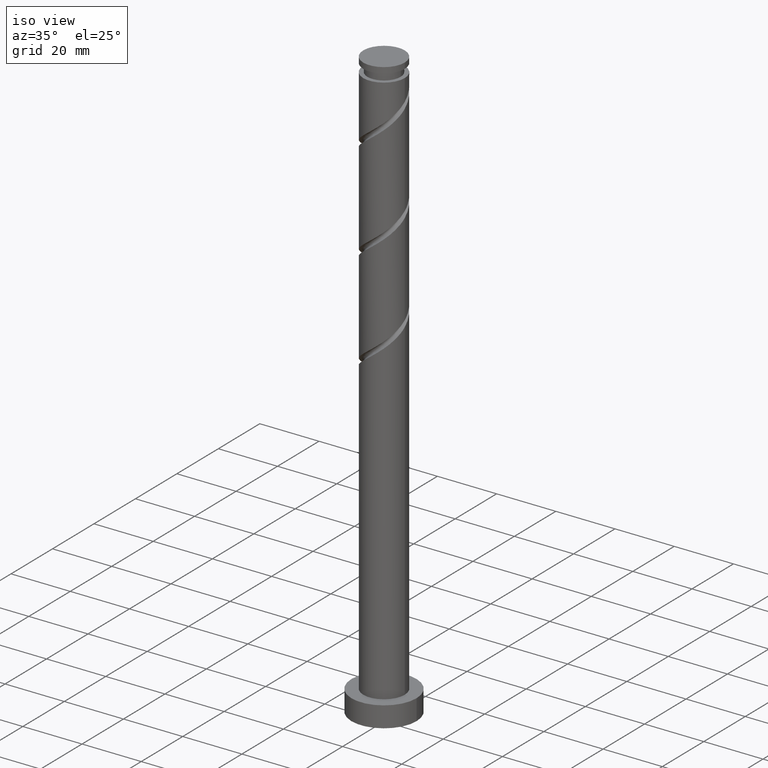
[diagram: clean part render]
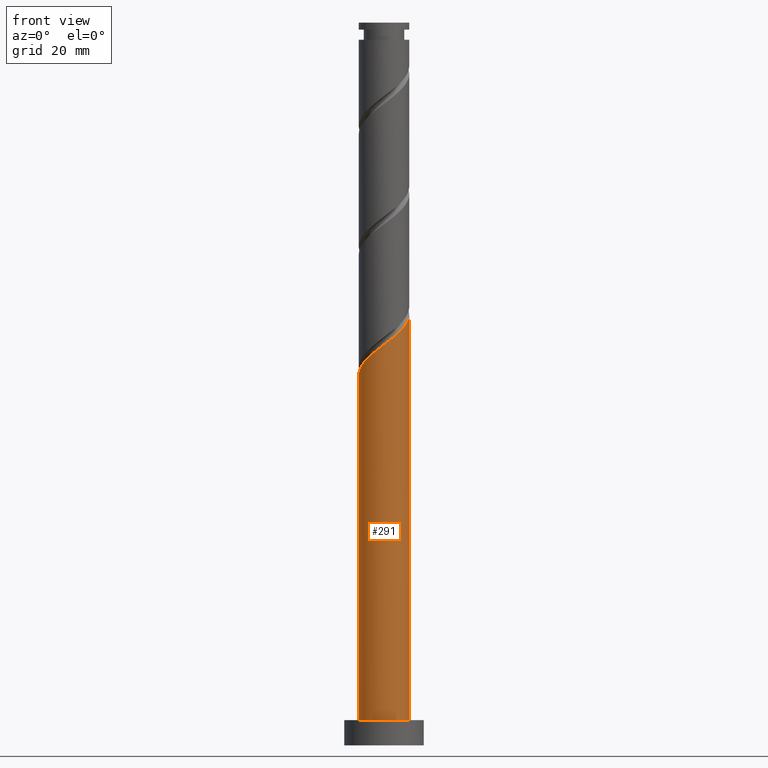
[diagram: tour spotlight — one face highlighted and labeled with its STEP entity id]
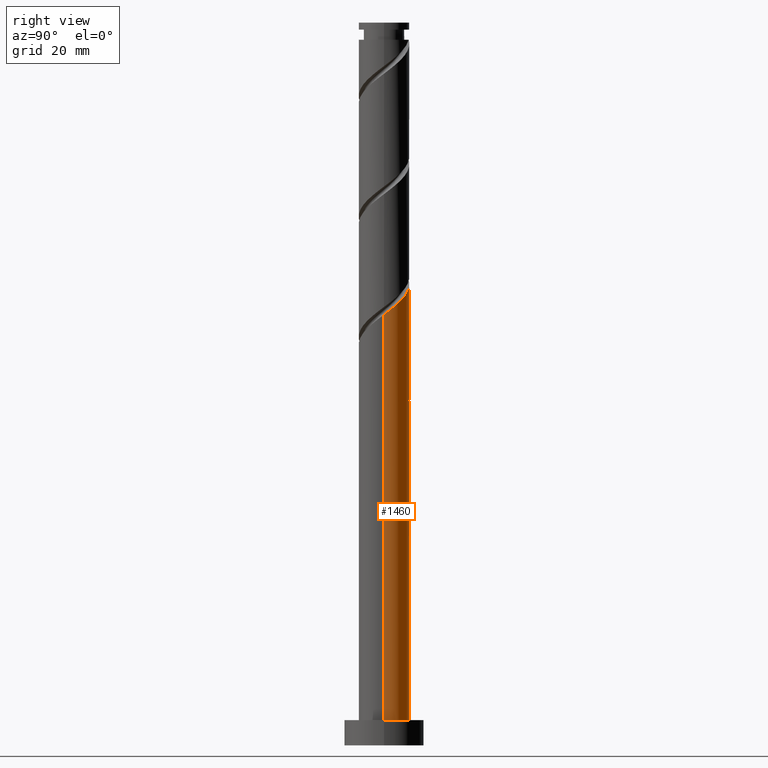
[diagram: tour spotlight — one face highlighted and labeled with its STEP entity id]
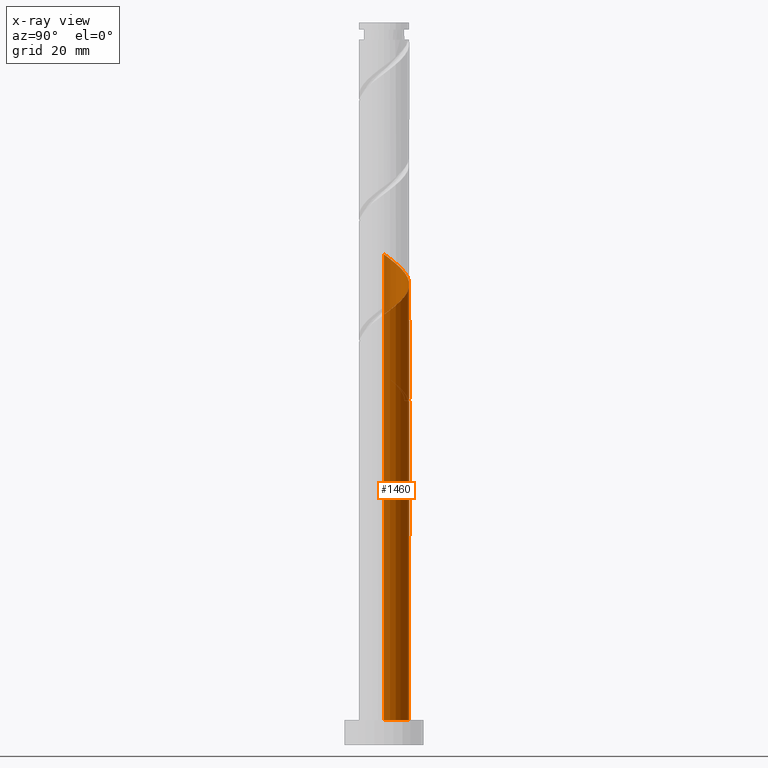
[diagram: x-ray of the same camera — body ghosted, this tour face saturated]
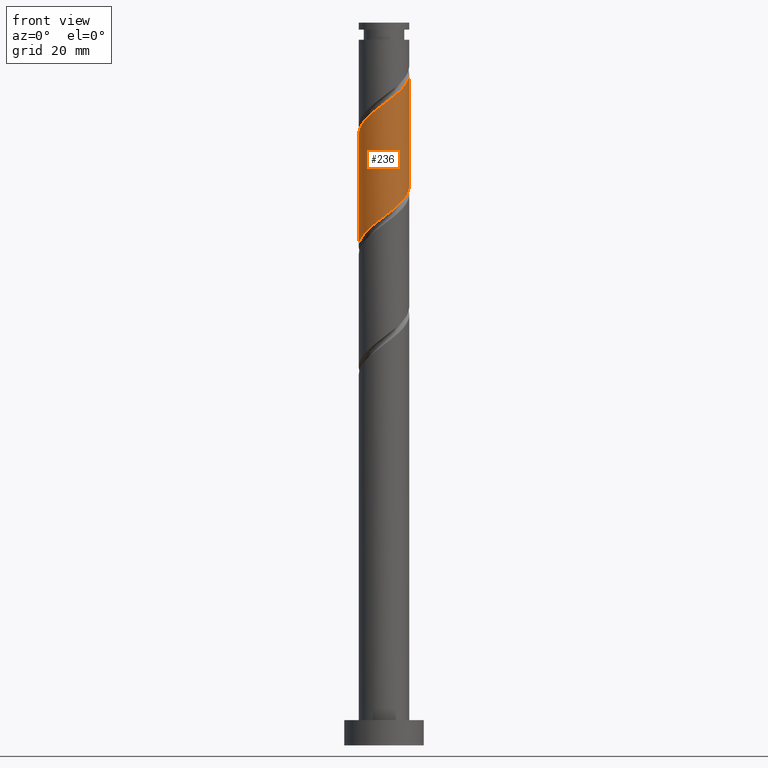
[diagram: tour spotlight — one face highlighted and labeled with its STEP entity id]
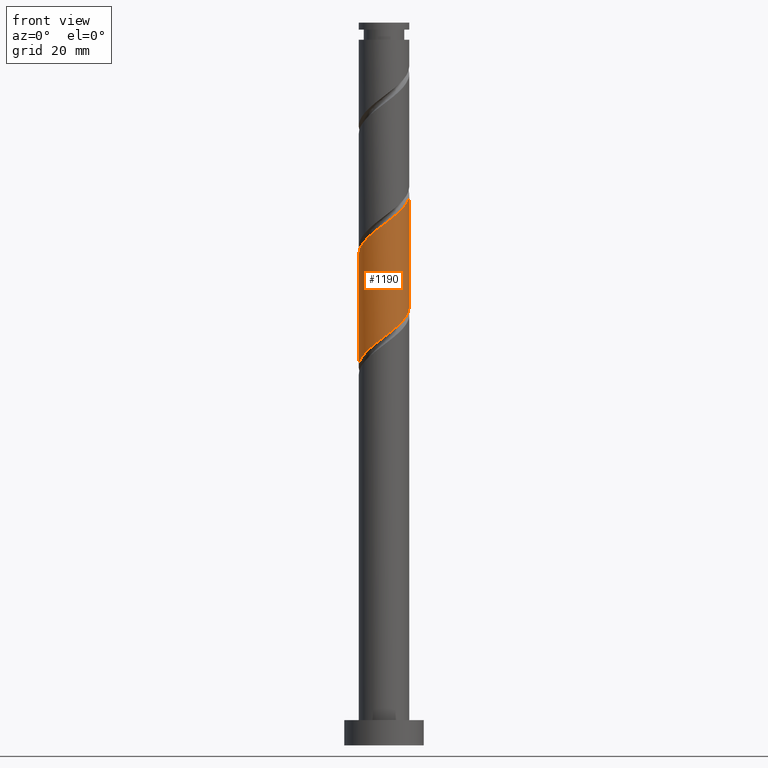
[diagram: tour spotlight — one face highlighted and labeled with its STEP entity id]
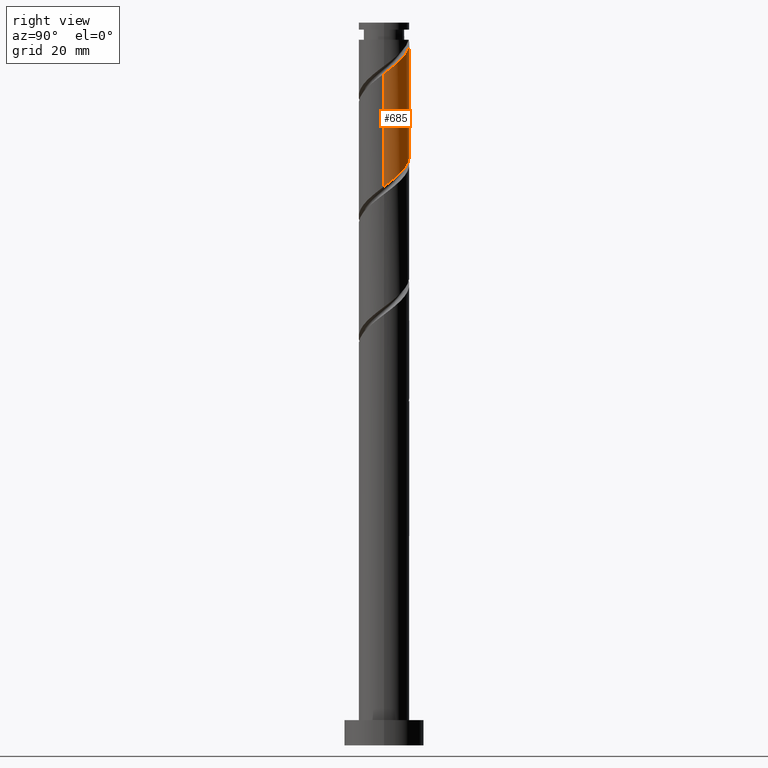
[diagram: tour spotlight — one face highlighted and labeled with its STEP entity id]
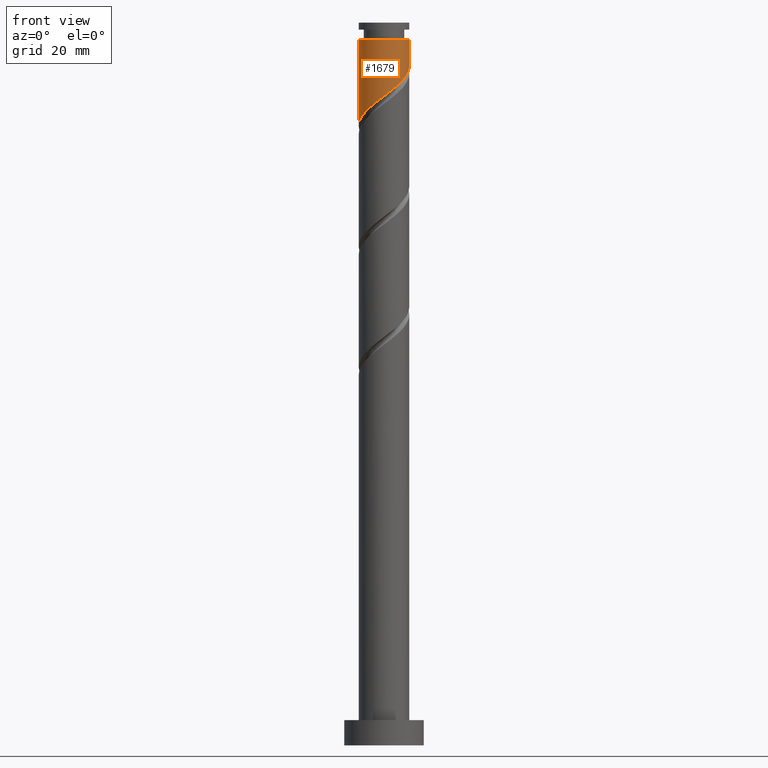
[diagram: tour spotlight — one face highlighted and labeled with its STEP entity id]
A machine part: a face-by-face anatomy tour. The part has 21 B-rep faces; the first image is the clean iso view, then the 6 largest visible faces are spotlighted one at a time (largest first), each with its STEP entity span.

Face 1 — front view, entity #291. In plain terms, the highlighted cylindrical surface (edge-blend (fillet) strip) has radius 7 mm, axis along (-0, -0, -1).
Definition (entity closure, byte-faithful):
#1 = CARTESIAN_POINT ( 'NONE',  ( 2.296118545398805111, -6.676610386371574890, 112.6299027166753177 ) ) ;
#21 = CARTESIAN_POINT ( 'NONE',  ( 6.930173478468219628, -1.349808202769851029, 118.1854582722308749 ) ) ;
#29 = CARTESIAN_POINT ( 'NONE',  ( 3.945914127944254890, -5.854831194903832525, 114.0187916055641750 ) ) ;
#72 = CARTESIAN_POINT ( 'NONE',  ( 7.000000000000000000, 8.572527594031473190E-16, 7.000000000000000000 ) ) ;
#94 = ORIENTED_EDGE ( 'NONE', *, *, #895, .T. ) ;
#130 = CARTESIAN_POINT ( 'NONE',  ( 1.392982411949269528, -6.860000000000009202, 111.9354582722308749 ) ) ;
#146 = CARTESIAN_POINT ( 'NONE',  ( -7.000000000000009770, -0.7035264706814507996, 103.0719846528767505 ) ) ;
#227 = VECTOR ( 'NONE', #273, 1000.000000000000000 ) ;
#273 = DIRECTION ( 'NONE',  ( -0.000000000000000000, -0.000000000000000000, -1.000000000000000000 ) ) ;
#291 = ADVANCED_FACE ( 'NONE', ( #1595 ), #1719, .T. ) ;
#315 = CARTESIAN_POINT ( 'NONE',  ( -7.000000000000008882, -4.216967213100880556E-15, 102.5385582836874931 ) ) ;
#388 = CARTESIAN_POINT ( 'NONE',  ( 7.000000000000008882, -1.196302755489611383E-16, 119.2052249503541361 ) ) ;
#414 = CARTESIAN_POINT ( 'NONE',  ( 7.000000000000008882, -1.196302755489611383E-16, 119.2052249503541361 ) ) ;
#423 = CARTESIAN_POINT ( 'NONE',  ( 5.326802183601723861, -4.634054933069415405, 115.4076804944530892 ) ) ;
#435 = CARTESIAN_POINT ( 'NONE',  ( 4.636358155772991374, -5.244443063986622633, 114.7132360500086605 ) ) ;
#477 = LINE ( 'NONE', #1292, #508 ) ;
#501 = CARTESIAN_POINT ( 'NONE',  ( -7.000000000000000000, 0.000000000000000000, 7.000000000000000000 ) ) ;
#508 = VECTOR ( 'NONE', #741, 1000.000000000000000 ) ;
#531 = CARTESIAN_POINT ( 'NONE',  ( 6.986781546048331570, -0.4299809621350620392, 118.8799027166753319 ) ) ;
#539 = CARTESIAN_POINT ( 'NONE',  ( -2.223641844227019160, -6.637425475935891939, 109.1576804944531034 ) ) ;
#547 = CARTESIAN_POINT ( 'NONE',  ( 3.121016336671529778, -6.265720790637702819, 113.3243471611197748 ) ) ;
#567 = CARTESIAN_POINT ( 'NONE',  ( -6.676610386371574890, -2.296118545398805111, 104.2965693833419607 ) ) ;
#568 = VERTEX_POINT ( 'NONE', #388 ) ;
#618 = DIRECTION ( 'NONE',  ( -0.000000000000000000, -0.000000000000000000, -1.000000000000000000 ) ) ;
#658 = EDGE_CURVE ( 'NONE', #1710, #568, #999, .T. ) ;
#663 = CARTESIAN_POINT ( 'NONE',  ( -5.854831194903829861, -3.945914127944256666, 105.6854582722308606 ) ) ;
#693 = CARTESIAN_POINT ( 'NONE',  ( -3.097475485684187291, -6.344677473403559809, 108.4632360500086321 ) ) ;
#741 = DIRECTION ( 'NONE',  ( -0.000000000000000000, -0.000000000000000000, -1.000000000000000000 ) ) ;
#761 = EDGE_LOOP ( 'NONE', ( #1196, #833, #94, #1029 ) ) ;
#763 = EDGE_CURVE ( 'NONE', #568, #944, #970, .T. ) ;
#813 = CARTESIAN_POINT ( 'NONE',  ( -0.4299809621350584310, -6.986781546048331570, 110.5465693833419891 ) ) ;
#818 = DIRECTION ( 'NONE',  ( 1.000000000000000000, 0.000000000000000000, 0.000000000000000000 ) ) ;
#833 = ORIENTED_EDGE ( 'NONE', *, *, #658, .F. ) ;
#839 = CARTESIAN_POINT ( 'NONE',  ( -4.634054933069415405, -5.326802183601723861, 107.0743471611197322 ) ) ;
#892 = CARTESIAN_POINT ( 'NONE',  ( 0.000000000000000000, 0.000000000000000000, 200.0000000000000000 ) ) ;
#895 = EDGE_CURVE ( 'NONE', #1710, #1152, #477, .T. ) ;
#907 = DIRECTION ( 'NONE',  ( -1.000000000000000000, 0.000000000000000000, 0.000000000000000000 ) ) ;
#942 = CARTESIAN_POINT ( 'NONE',  ( 7.000000000000000000, 8.572527594031473190E-16, 200.0000000000000000 ) ) ;
#944 = VERTEX_POINT ( 'NONE', #72 ) ;
#948 = CARTESIAN_POINT ( 'NONE',  ( 0.000000000000000000, 0.000000000000000000, 7.000000000000000000 ) ) ;
#970 = LINE ( 'NONE', #942, #227 ) ;
#980 = CARTESIAN_POINT ( 'NONE',  ( 6.637425475935891939, -2.223641844227019604, 117.4910138277864320 ) ) ;
#999 =( BOUNDED_CURVE ( )  B_SPLINE_CURVE ( 2, ( #1506, #146, #1496, #567, #1516, #663, #1743, #839, #1650, #693, #539, #1241, #813, #1613, #130, #1, #547, #29, #435, #423, #1622, #1084, #980, #21, #531, #1383, #414 ),
 .UNSPECIFIED., .F., .T. ) 
 B_SPLINE_CURVE_WITH_KNOTS ( ( 3, 2, 2, 2, 2, 2, 2, 2, 2, 2, 2, 2, 2, 3 ),
 ( 0.05453176698144634321, 0.06250000000000000000, 0.07291666666666662966, 0.08333333333333337034, 0.09375000000000000000, 0.1041666666666666297, 0.1145833333333333703, 0.1250000000000000000, 0.1354166666666666297, 0.1458333333333333703, 0.1562500000000000000, 0.1666666666666666297, 0.1770833333333333703, 0.1795317669814463502 ),
 .UNSPECIFIED. ) 
 CURVE ( )  GEOMETRIC_REPRESENTATION_ITEM ( )  RATIONAL_B_SPLINE_CURVE ( ( 0.9062941362546409474, 0.9031415850403454737, 0.9090909090909207180, 0.9013135103398393078, 0.9090909090909207180, 0.9013135103398393078, 0.9090909090909207180, 0.9013135103398393078, 0.9090909090909207180, 0.9013135103398393078, 0.9090909090909207180, 0.9013135103398393078, 0.9090909090909207180, 0.9013135103398393078, 0.9090909090909207180, 0.9013135103398393078, 0.9090909090909207180, 0.9013135103398393078, 0.9090909090909207180, 0.9013135103398393078, 0.9090909090909207180, 0.9013135103398393078, 0.9090909090909207180, 0.9013135103398393078, 0.9090909090909207180, 0.9072628343904144410, 0.9062941362546410584 ) ) 
 REPRESENTATION_ITEM ( '' )  );
#1029 = ORIENTED_EDGE ( 'NONE', *, *, #1375, .T. ) ;
#1084 = CARTESIAN_POINT ( 'NONE',  ( 6.344677473403559809, -3.097475485684187735, 116.7965693833419891 ) ) ;
#1110 = CIRCLE ( 'NONE', #1592, 7.000000000000000000 ) ;
#1152 = VERTEX_POINT ( 'NONE', #501 ) ;
#1196 = ORIENTED_EDGE ( 'NONE', *, *, #763, .F. ) ;
#1241 = CARTESIAN_POINT ( 'NONE',  ( -1.349808202769847476, -6.930173478468222292, 109.8521249388975036 ) ) ;
#1292 = CARTESIAN_POINT ( 'NONE',  ( -7.000000000000000000, 0.000000000000000000, 200.0000000000000000 ) ) ;
#1339 = DIRECTION ( 'NONE',  ( 0.000000000000000000, 0.000000000000000000, 1.000000000000000000 ) ) ;
#1353 = AXIS2_PLACEMENT_3D ( 'NONE', #892, #618, #907 ) ;
#1375 = EDGE_CURVE ( 'NONE', #1152, #944, #1110, .T. ) ;
#1383 = CARTESIAN_POINT ( 'NONE',  ( 7.000000000000010658, -0.2151936616037170846, 119.0420612623260297 ) ) ;
#1496 = CARTESIAN_POINT ( 'NONE',  ( -6.860000000000009202, -1.392982411949269750, 103.6021249388975605 ) ) ;
#1506 = CARTESIAN_POINT ( 'NONE',  ( -7.000000000000008882, -4.216967213100881344E-15, 102.5385582836874931 ) ) ;
#1516 = CARTESIAN_POINT ( 'NONE',  ( -6.265720790637701931, -3.121016336671532443, 104.9910138277864320 ) ) ;
#1592 = AXIS2_PLACEMENT_3D ( 'NONE', #948, #1339, #818 ) ;
#1595 = FACE_OUTER_BOUND ( 'NONE', #761, .T. ) ;
#1613 = CARTESIAN_POINT ( 'NONE',  ( 0.4898462784997307251, -7.043389613628444401, 111.2410138277864036 ) ) ;
#1622 = CARTESIAN_POINT ( 'NONE',  ( 5.835739828502642723, -3.865765209376803568, 116.1021249388975605 ) ) ;
#1650 = CARTESIAN_POINT ( 'NONE',  ( -3.865765209376802680, -5.835739828502645388, 107.7687916055642035 ) ) ;
#1710 = VERTEX_POINT ( 'NONE', #315 ) ;
#1719 = CYLINDRICAL_SURFACE ( 'NONE', #1353, 7.000000000000000000 ) ;
#1743 = CARTESIAN_POINT ( 'NONE',  ( -5.244443063986621745, -4.636358155772991374, 106.3799027166753461 ) ) ;

Face 2 — right view, entity #1460. An x-ray twin of the same camera follows (body ghosted, this face saturated) — the face is partly hidden behind the body. In plain terms, the highlighted cylindrical surface (edge-blend (fillet) strip) has radius 7 mm, axis along (-0, -0, -1).
Definition (entity closure, byte-faithful):
#14 = EDGE_CURVE ( 'NONE', #1640, #921, #1384, .T. ) ;
#18 = CARTESIAN_POINT ( 'NONE',  ( 1.392982411949271082, 6.860000000000000320, 95.26879160556420345 ) ) ;
#26 = CARTESIAN_POINT ( 'NONE',  ( -6.265720790637692161, 3.121016336671530667, 102.2132360500086605 ) ) ;
#47 = CARTESIAN_POINT ( 'NONE',  ( -7.000000000000010658, 0.2151936616037134486, 102.3753945956593441 ) ) ;
#72 = CARTESIAN_POINT ( 'NONE',  ( 7.000000000000000000, 8.572527594031473190E-16, 7.000000000000000000 ) ) ;
#89 = AXIS2_PLACEMENT_3D ( 'NONE', #893, #352, #1046 ) ;
#93 = CARTESIAN_POINT ( 'NONE',  ( -5.326802183601726526, 4.634054933069415405, 132.0743471611197322 ) ) ;
#101 = VECTOR ( 'NONE', #1410, 1000.000000000000000 ) ;
#114 = CARTESIAN_POINT ( 'NONE',  ( 5.854831194903832525, 3.945914127944254002, 122.3521249388975178 ) ) ;
#138 = CARTESIAN_POINT ( 'NONE',  ( -5.835739828502646276, 3.865765209376801792, 99.43545827223088907 ) ) ;
#140 = CIRCLE ( 'NONE', #89, 7.000000000000000000 ) ;
#143 = CARTESIAN_POINT ( 'NONE',  ( -5.854831194903820979, 3.945914127944254890, 101.5187916055642177 ) ) ;
#156 = CARTESIAN_POINT ( 'NONE',  ( -7.000000000000000000, 0.000000000000000000, 200.0000000000000000 ) ) ;
#196 =( BOUNDED_CURVE ( )  B_SPLINE_CURVE ( 2, ( #1526, #397, #1350, #823, #673, #1362, #138, #1392, #1019, #1159, #874, #47, #1011 ),
 .UNSPECIFIED., .F., .T. ) 
 B_SPLINE_CURVE_WITH_KNOTS ( ( 3, 2, 2, 2, 2, 2, 3 ),
 ( 0.000000000000000000, 0.01041666666666662966, 0.02083333333333337034, 0.03125000000000000000, 0.04166666666666662966, 0.05208333333333337034, 0.05453176698144634321 ),
 .UNSPECIFIED. ) 
 CURVE ( )  GEOMETRIC_REPRESENTATION_ITEM ( )  RATIONAL_B_SPLINE_CURVE ( ( 0.9090909090909207180, 0.9013135103398393078, 0.9090909090909207180, 0.9013135103398393078, 0.9090909090909207180, 0.9013135103398393078, 0.9090909090909207180, 0.9013135103398393078, 0.9090909090909207180, 0.9013135103398393078, 0.9090909090909207180, 0.9072628343904144410, 0.9062941362546409474 ) ) 
 REPRESENTATION_ITEM ( '' )  );
#218 = ORIENTED_EDGE ( 'NONE', *, *, #1243, .F. ) ;
#227 = VECTOR ( 'NONE', #273, 1000.000000000000000 ) ;
#231 = CARTESIAN_POINT ( 'NONE',  ( -6.344677473403561585, 3.097475485684185514, 133.4632360500086179 ) ) ;
#237 = CARTESIAN_POINT ( 'NONE',  ( -0.4898462784997261732, 7.043389613628444401, 127.9076804944530608 ) ) ;
#246 = CARTESIAN_POINT ( 'NONE',  ( 0.4299809621350623723, 6.986781546048331570, 127.2132360500086463 ) ) ;
#255 = CARTESIAN_POINT ( 'NONE',  ( 6.676610386371574890, 2.296118545398805111, 120.9632360500086321 ) ) ;
#270 = DIRECTION ( 'NONE',  ( -1.000000000000000000, 0.000000000000000000, 0.000000000000000000 ) ) ;
#273 = DIRECTION ( 'NONE',  ( -0.000000000000000000, -0.000000000000000000, -1.000000000000000000 ) ) ;
#299 = CARTESIAN_POINT ( 'NONE',  ( -7.000000000000001776, 7.476892221810113420E-15, 104.6656915941076278 ) ) ;
#315 = CARTESIAN_POINT ( 'NONE',  ( -7.000000000000008882, -4.216967213100880556E-15, 102.5385582836874931 ) ) ;
#346 = EDGE_CURVE ( 'NONE', #944, #1152, #366, .T. ) ;
#352 = DIRECTION ( 'NONE',  ( 0.000000000000000000, -4.956352788505163465E-15, -1.000000000000000000 ) ) ;
#365 = VERTEX_POINT ( 'NONE', #476 ) ;
#366 = CIRCLE ( 'NONE', #1365, 7.000000000000000000 ) ;
#381 = CARTESIAN_POINT ( 'NONE',  ( -1.392982411949268640, 6.860000000000009202, 128.6021249388975605 ) ) ;
#388 = CARTESIAN_POINT ( 'NONE',  ( 7.000000000000008882, -1.196302755489611383E-16, 119.2052249503541361 ) ) ;
#397 = CARTESIAN_POINT ( 'NONE',  ( -2.296118545398805999, 6.676610386371573114, 95.96323605000864632 ) ) ;
#476 = CARTESIAN_POINT ( 'NONE',  ( -1.392982411949268418, 6.860000000000009202, 95.26879160556420345 ) ) ;
#477 = LINE ( 'NONE', #1292, #508 ) ;
#483 = ORIENTED_EDGE ( 'NONE', *, *, #530, .F. ) ;
#488 = CARTESIAN_POINT ( 'NONE',  ( -3.945914127944259331, 5.854831194903828973, 130.6854582722308464 ) ) ;
#501 = CARTESIAN_POINT ( 'NONE',  ( -7.000000000000000000, 0.000000000000000000, 7.000000000000000000 ) ) ;
#503 = CARTESIAN_POINT ( 'NONE',  ( 6.265720790637702819, 3.121016336671528890, 121.6576804944531034 ) ) ;
#508 = VECTOR ( 'NONE', #741, 1000.000000000000000 ) ;
#526 = CARTESIAN_POINT ( 'NONE',  ( -6.860000000000000320, 1.392982411949269972, 103.6021249388975463 ) ) ;
#530 = EDGE_CURVE ( 'NONE', #568, #1640, #1111, .T. ) ;
#537 = AXIS2_PLACEMENT_3D ( 'NONE', #690, #700, #270 ) ;
#553 = CARTESIAN_POINT ( 'NONE',  ( -3.865765209376795575, 5.835739828502638282, 99.43545827223086064 ) ) ;
#568 = VERTEX_POINT ( 'NONE', #388 ) ;
#622 = CARTESIAN_POINT ( 'NONE',  ( -7.000000000000010658, 0.2151936616037128658, 135.7087279289926869 ) ) ;
#639 = CARTESIAN_POINT ( 'NONE',  ( 7.000000000000008882, -1.196302755489611383E-16, 119.2052249503541361 ) ) ;
#655 = CARTESIAN_POINT ( 'NONE',  ( -3.121016336671532443, 6.265720790637701931, 129.9910138277864462 ) ) ;
#660 = CARTESIAN_POINT ( 'NONE',  ( 0.4898462784997338337, 7.043389613628436408, 95.96323605000863211 ) ) ;
#669 = FACE_OUTER_BOUND ( 'NONE', #831, .T. ) ;
#673 = CARTESIAN_POINT ( 'NONE',  ( -4.636358155772993150, 5.244443063986621745, 98.04656938334200333 ) ) ;
#690 = CARTESIAN_POINT ( 'NONE',  ( 0.000000000000000000, 0.000000000000000000, 200.0000000000000000 ) ) ;
#700 = DIRECTION ( 'NONE',  ( -0.000000000000000000, -0.000000000000000000, -1.000000000000000000 ) ) ;
#713 = ORIENTED_EDGE ( 'NONE', *, *, #1168, .T. ) ;
#741 = DIRECTION ( 'NONE',  ( -0.000000000000000000, -0.000000000000000000, -1.000000000000000000 ) ) ;
#763 = EDGE_CURVE ( 'NONE', #568, #944, #970, .T. ) ;
#784 = CARTESIAN_POINT ( 'NONE',  ( 5.244443063986624409, 4.636358155772989598, 123.0465693833419891 ) ) ;
#794 = CARTESIAN_POINT ( 'NONE',  ( -5.835739828502646276, 3.865765209376801792, 132.7687916055642461 ) ) ;
#796 = EDGE_CURVE ( 'NONE', #365, #1710, #196, .T. ) ;
#806 =( BOUNDED_CURVE ( )  B_SPLINE_CURVE ( 2, ( #1090, #1740, #526, #1484, #26, #143, #1100, #1238, #553, #1748, #1627, #1230, #1636, #660, #18 ),
 .UNSPECIFIED., .F., .T. ) 
 B_SPLINE_CURVE_WITH_KNOTS ( ( 3, 2, 2, 2, 2, 2, 2, 3 ),
 ( 0.9295317669814463502, 0.9375000000000000000, 0.9479166666666666297, 0.9583333333333333703, 0.9687500000000000000, 0.9791666666666666297, 0.9895833333333333703, 1.000000000000000000 ),
 .UNSPECIFIED. ) 
 CURVE ( )  GEOMETRIC_REPRESENTATION_ITEM ( )  RATIONAL_B_SPLINE_CURVE ( ( 0.9062941362546359514, 0.9031415850403404777, 0.9090909090909158330, 0.9013135103398343118, 0.9090909090909158330, 0.9013135103398343118, 0.9090909090909158330, 0.9013135103398343118, 0.9090909090909158330, 0.9013135103398343118, 0.9090909090909158330, 0.9013135103398343118, 0.9090909090909158330, 0.9013135103398343118, 0.9090909090909158330 ) ) 
 REPRESENTATION_ITEM ( '' )  );
#823 = CARTESIAN_POINT ( 'NONE',  ( -3.945914127944259331, 5.854831194903828973, 97.35212493889754626 ) ) ;
#831 = EDGE_LOOP ( 'NONE', ( #483, #905, #1043, #1012, #1520, #713, #218, #1616 ) ) ;
#874 = CARTESIAN_POINT ( 'NONE',  ( -6.986781546048331570, 0.4299809621350583200, 102.2132360500086605 ) ) ;
#893 = CARTESIAN_POINT ( 'NONE',  ( 0.000000000000000000, 0.000000000000000000, 95.26879160556423187 ) ) ;
#895 = EDGE_CURVE ( 'NONE', #1710, #1152, #477, .T. ) ;
#905 = ORIENTED_EDGE ( 'NONE', *, *, #763, .T. ) ;
#921 = VERTEX_POINT ( 'NONE', #299 ) ;
#942 = CARTESIAN_POINT ( 'NONE',  ( 7.000000000000000000, 8.572527594031473190E-16, 200.0000000000000000 ) ) ;
#944 = VERTEX_POINT ( 'NONE', #72 ) ;
#970 = LINE ( 'NONE', #942, #227 ) ;
#1011 = CARTESIAN_POINT ( 'NONE',  ( -7.000000000000008882, -4.216967213100881344E-15, 102.5385582836874931 ) ) ;
#1012 = ORIENTED_EDGE ( 'NONE', *, *, #895, .F. ) ;
#1019 = CARTESIAN_POINT ( 'NONE',  ( -6.637425475935891939, 2.223641844227017828, 100.8243471611197748 ) ) ;
#1024 = CARTESIAN_POINT ( 'NONE',  ( 0.000000000000000000, 0.000000000000000000, 7.000000000000000000 ) ) ;
#1034 = CARTESIAN_POINT ( 'NONE',  ( 7.000000000000009770, 0.7035264706814470248, 119.7386513195434503 ) ) ;
#1043 = ORIENTED_EDGE ( 'NONE', *, *, #346, .T. ) ;
#1046 = DIRECTION ( 'NONE',  ( 0.000000000000000000, 1.000000000000000000, -5.947623346206195527E-15 ) ) ;
#1048 = CARTESIAN_POINT ( 'NONE',  ( 1.349808202769851251, 6.930173478468219628, 126.5187916055641750 ) ) ;
#1065 = CARTESIAN_POINT ( 'NONE',  ( -6.637425475935891939, 2.223641844227017828, 134.1576804944531034 ) ) ;
#1090 = CARTESIAN_POINT ( 'NONE',  ( -7.000000000000001776, 7.476892221810113420E-15, 104.6656915941076136 ) ) ;
#1100 = CARTESIAN_POINT ( 'NONE',  ( -5.244443063986615527, 4.636358155772987821, 100.8243471611197606 ) ) ;
#1111 =( BOUNDED_CURVE ( )  B_SPLINE_CURVE ( 2, ( #639, #1034, #1715, #255, #503, #114, #784, #1462, #1578, #1188, #1198, #1048, #246, #237, #381, #1209, #655, #488, #1448, #93, #794, #231, #1065, #1334, #1302, #622, #1736 ),
 .UNSPECIFIED., .F., .T. ) 
 B_SPLINE_CURVE_WITH_KNOTS ( ( 3, 2, 2, 2, 2, 2, 2, 2, 2, 2, 2, 2, 2, 3 ),
 ( 0.1795317669814463502, 0.1875000000000000000, 0.1979166666666666297, 0.2083333333333333703, 0.2187500000000000000, 0.2291666666666666297, 0.2395833333333333703, 0.2500000000000000000, 0.2604166666666666297, 0.2708333333333333703, 0.2812500000000000000, 0.2916666666666666297, 0.3020833333333333703, 0.3045317669814463502 ),
 .UNSPECIFIED. ) 
 CURVE ( )  GEOMETRIC_REPRESENTATION_ITEM ( )  RATIONAL_B_SPLINE_CURVE ( ( 0.9062941362546410584, 0.9031415850403454737, 0.9090909090909207180, 0.9013135103398393078, 0.9090909090909207180, 0.9013135103398393078, 0.9090909090909207180, 0.9013135103398393078, 0.9090909090909207180, 0.9013135103398393078, 0.9090909090909207180, 0.9013135103398393078, 0.9090909090909207180, 0.9013135103398393078, 0.9090909090909207180, 0.9013135103398393078, 0.9090909090909207180, 0.9013135103398393078, 0.9090909090909207180, 0.9013135103398393078, 0.9090909090909207180, 0.9013135103398393078, 0.9090909090909207180, 0.9013135103398393078, 0.9090909090909207180, 0.9072628343904144410, 0.9062941362546410584 ) ) 
 REPRESENTATION_ITEM ( '' )  );
#1152 = VERTEX_POINT ( 'NONE', #501 ) ;
#1159 = CARTESIAN_POINT ( 'NONE',  ( -6.930173478468220516, 1.349808202769846810, 101.5187916055641750 ) ) ;
#1168 = EDGE_CURVE ( 'NONE', #365, #1449, #140, .T. ) ;
#1184 = DIRECTION ( 'NONE',  ( 0.000000000000000000, 0.000000000000000000, 1.000000000000000000 ) ) ;
#1188 = CARTESIAN_POINT ( 'NONE',  ( 3.097475485684188179, 6.344677473403559809, 125.1299027166752751 ) ) ;
#1198 = CARTESIAN_POINT ( 'NONE',  ( 2.223641844227020048, 6.637425475935890162, 125.8243471611197606 ) ) ;
#1209 = CARTESIAN_POINT ( 'NONE',  ( -2.296118545398805999, 6.676610386371573114, 129.2965693833419607 ) ) ;
#1213 = CARTESIAN_POINT ( 'NONE',  ( 1.392982411949271082, 6.860000000000000320, 95.26879160556420345 ) ) ;
#1230 = CARTESIAN_POINT ( 'NONE',  ( -1.349808202769843923, 6.930173478468214299, 97.35212493889754626 ) ) ;
#1238 = CARTESIAN_POINT ( 'NONE',  ( -4.634054933069407411, 5.326802183601722085, 100.1299027166752893 ) ) ;
#1243 = EDGE_CURVE ( 'NONE', #921, #1449, #806, .T. ) ;
#1292 = CARTESIAN_POINT ( 'NONE',  ( -7.000000000000000000, 0.000000000000000000, 200.0000000000000000 ) ) ;
#1302 = CARTESIAN_POINT ( 'NONE',  ( -6.986781546048331570, 0.4299809621350583200, 135.5465693833420175 ) ) ;
#1334 = CARTESIAN_POINT ( 'NONE',  ( -6.930173478468220516, 1.349808202769846810, 134.8521249388975036 ) ) ;
#1350 = CARTESIAN_POINT ( 'NONE',  ( -3.121016336671532443, 6.265720790637701931, 96.65768049445310339 ) ) ;
#1362 = CARTESIAN_POINT ( 'NONE',  ( -5.326802183601726526, 4.634054933069415405, 98.74101382778643199 ) ) ;
#1365 = AXIS2_PLACEMENT_3D ( 'NONE', #1024, #1184, #1458 ) ;
#1370 = CYLINDRICAL_SURFACE ( 'NONE', #537, 7.000000000000000000 ) ;
#1384 = LINE ( 'NONE', #156, #101 ) ;
#1392 = CARTESIAN_POINT ( 'NONE',  ( -6.344677473403561585, 3.097475485684185514, 100.1299027166752893 ) ) ;
#1410 = DIRECTION ( 'NONE',  ( -0.000000000000000000, -0.000000000000000000, -1.000000000000000000 ) ) ;
#1448 = CARTESIAN_POINT ( 'NONE',  ( -4.636358155772993150, 5.244443063986621745, 131.3799027166753319 ) ) ;
#1449 = VERTEX_POINT ( 'NONE', #1213 ) ;
#1458 = DIRECTION ( 'NONE',  ( 1.000000000000000000, 0.000000000000000000, 0.000000000000000000 ) ) ;
#1460 = ADVANCED_FACE ( 'NONE', ( #669 ), #1370, .T. ) ;
#1462 = CARTESIAN_POINT ( 'NONE',  ( 4.634054933069418070, 5.326802183601721197, 123.7410138277863894 ) ) ;
#1484 = CARTESIAN_POINT ( 'NONE',  ( -6.676610386371565120, 2.296118545398805111, 102.9076804944530892 ) ) ;
#1520 = ORIENTED_EDGE ( 'NONE', *, *, #796, .F. ) ;
#1526 = CARTESIAN_POINT ( 'NONE',  ( -1.392982411949268196, 6.860000000000009202, 95.26879160556420345 ) ) ;
#1578 = CARTESIAN_POINT ( 'NONE',  ( 3.865765209376802680, 5.835739828502645388, 124.4354582722308891 ) ) ;
#1616 = ORIENTED_EDGE ( 'NONE', *, *, #14, .F. ) ;
#1627 = CARTESIAN_POINT ( 'NONE',  ( -2.223641844227012498, 6.637425475935884833, 98.04656938334198912 ) ) ;
#1636 = CARTESIAN_POINT ( 'NONE',  ( -0.4299809621350551558, 6.986781546048324465, 96.65768049445308918 ) ) ;
#1640 = VERTEX_POINT ( 'NONE', #1680 ) ;
#1680 = CARTESIAN_POINT ( 'NONE',  ( -7.000000000000008882, -4.216967213100880556E-15, 135.8718916170208217 ) ) ;
#1710 = VERTEX_POINT ( 'NONE', #315 ) ;
#1715 = CARTESIAN_POINT ( 'NONE',  ( 6.860000000000009202, 1.392982411949269084, 120.2687916055642035 ) ) ;
#1736 = CARTESIAN_POINT ( 'NONE',  ( -7.000000000000008882, -4.216967213100880556E-15, 135.8718916170208217 ) ) ;
#1740 = CARTESIAN_POINT ( 'NONE',  ( -7.000000000000000888, 0.7035264706814537972, 104.1322652249183420 ) ) ;
#1748 = CARTESIAN_POINT ( 'NONE',  ( -3.097475485684180629, 6.344677473403557144, 98.74101382778641778 ) ) ;

Face 3 — front view, entity #236. In plain terms, the highlighted cylindrical surface (edge-blend (fillet) strip) has radius 7 mm, axis along (-0, -0, -1).
Definition (entity closure, byte-faithful):
#9 = DIRECTION ( 'NONE',  ( -0.000000000000000000, -0.000000000000000000, -1.000000000000000000 ) ) ;
#15 = VERTEX_POINT ( 'NONE', #1546 ) ;
#34 = DIRECTION ( 'NONE',  ( -0.000000000000000000, -0.000000000000000000, -1.000000000000000000 ) ) ;
#44 = CARTESIAN_POINT ( 'NONE',  ( 5.326802183601723861, -4.634054933069415405, 182.0743471611197606 ) ) ;
#84 = CARTESIAN_POINT ( 'NONE',  ( 6.860000000000000320, -1.392982411949270638, 153.6021249388975036 ) ) ;
#99 = CARTESIAN_POINT ( 'NONE',  ( 2.223641844227011610, -6.637425475935885721, 148.0465693833419891 ) ) ;
#113 = VECTOR ( 'NONE', #9, 1000.000000000000000 ) ;
#162 = CARTESIAN_POINT ( 'NONE',  ( -6.676610386371574890, -2.296118545398805111, 170.9632360500086463 ) ) ;
#172 = CARTESIAN_POINT ( 'NONE',  ( 6.930173478468219628, -1.349808202769851029, 184.8521249388975605 ) ) ;
#188 = CARTESIAN_POINT ( 'NONE',  ( 2.296118545398805111, -6.676610386371574890, 179.2965693833419607 ) ) ;
#236 = ADVANCED_FACE ( 'NONE', ( #1298 ), #351, .T. ) ;
#253 =( BOUNDED_CURVE ( )  B_SPLINE_CURVE ( 2, ( #863, #325, #879, #162, #709, #1122, #1655, #591, #1262, #1109, #1414, #441, #987, #1531, #1289, #188, #1424, #737, #304, #44, #1279, #854, #1398, #172, #1664, #1406, #728 ),
 .UNSPECIFIED., .F., .T. ) 
 B_SPLINE_CURVE_WITH_KNOTS ( ( 3, 2, 2, 2, 2, 2, 2, 2, 2, 2, 2, 2, 2, 3 ),
 ( 0.5545317669814462391, 0.5625000000000000000, 0.5729166666666667407, 0.5833333333333332593, 0.5937500000000000000, 0.6041666666666667407, 0.6145833333333332593, 0.6250000000000000000, 0.6354166666666667407, 0.6458333333333332593, 0.6562500000000000000, 0.6666666666666667407, 0.6770833333333332593, 0.6795317669814461281 ),
 .UNSPECIFIED. ) 
 CURVE ( )  GEOMETRIC_REPRESENTATION_ITEM ( )  RATIONAL_B_SPLINE_CURVE ( ( 0.9062941362546410584, 0.9031415850403454737, 0.9090909090909207180, 0.9013135103398393078, 0.9090909090909207180, 0.9013135103398393078, 0.9090909090909207180, 0.9013135103398393078, 0.9090909090909207180, 0.9013135103398393078, 0.9090909090909207180, 0.9013135103398393078, 0.9090909090909207180, 0.9013135103398393078, 0.9090909090909207180, 0.9013135103398393078, 0.9090909090909207180, 0.9013135103398393078, 0.9090909090909207180, 0.9013135103398393078, 0.9090909090909207180, 0.9013135103398393078, 0.9090909090909207180, 0.9013135103398393078, 0.9090909090909207180, 0.9072628343904145520, 0.9062941362546412805 ) ) 
 REPRESENTATION_ITEM ( '' )  );
#264 = CARTESIAN_POINT ( 'NONE',  ( -6.344677473403557144, -3.097475485684178853, 140.4076804944531034 ) ) ;
#280 = CARTESIAN_POINT ( 'NONE',  ( -3.121016336671531111, -6.265720790637692161, 143.8799027166753319 ) ) ;
#290 = CARTESIAN_POINT ( 'NONE',  ( -4.636358155772989598, -5.244443063986613751, 142.4910138277864178 ) ) ;
#304 = CARTESIAN_POINT ( 'NONE',  ( 4.636358155772991374, -5.244443063986622633, 181.3799027166753319 ) ) ;
#325 = CARTESIAN_POINT ( 'NONE',  ( -7.000000000000009770, -0.7035264706814494673, 169.7386513195434361 ) ) ;
#351 = CYLINDRICAL_SURFACE ( 'NONE', #554, 7.000000000000000000 ) ;
#356 = VERTEX_POINT ( 'NONE', #1165 ) ;
#362 = CARTESIAN_POINT ( 'NONE',  ( 7.000000000000003553, -0.7035264706814448044, 154.1322652249183136 ) ) ;
#377 = CARTESIAN_POINT ( 'NONE',  ( 0.000000000000000000, 0.000000000000000000, 200.0000000000000000 ) ) ;
#441 = CARTESIAN_POINT ( 'NONE',  ( -1.349808202769847476, -6.930173478468222292, 176.5187916055641608 ) ) ;
#445 = ORIENTED_EDGE ( 'NONE', *, *, #630, .F. ) ;
#549 = VERTEX_POINT ( 'NONE', #1170 ) ;
#554 = AXIS2_PLACEMENT_3D ( 'NONE', #377, #626, #636 ) ;
#591 = CARTESIAN_POINT ( 'NONE',  ( -4.634054933069415405, -5.326802183601723861, 173.7410138277863609 ) ) ;
#626 = DIRECTION ( 'NONE',  ( -0.000000000000000000, -0.000000000000000000, -1.000000000000000000 ) ) ;
#630 = EDGE_CURVE ( 'NONE', #549, #981, #884, .T. ) ;
#636 = DIRECTION ( 'NONE',  ( -1.000000000000000000, 0.000000000000000000, 0.000000000000000000 ) ) ;
#648 = CARTESIAN_POINT ( 'NONE',  ( 6.265720790637690385, -3.121016336671534219, 152.2132360500086463 ) ) ;
#709 = CARTESIAN_POINT ( 'NONE',  ( -6.265720790637701931, -3.121016336671532443, 171.6576804944531034 ) ) ;
#728 = CARTESIAN_POINT ( 'NONE',  ( 7.000000000000008882, -2.482328217640942793E-15, 185.8718916170207933 ) ) ;
#737 = CARTESIAN_POINT ( 'NONE',  ( 3.945914127944254890, -5.854831194903832525, 180.6854582722308464 ) ) ;
#777 = CARTESIAN_POINT ( 'NONE',  ( 5.244443063986613751, -4.636358155772991374, 150.8243471611197606 ) ) ;
#804 = CARTESIAN_POINT ( 'NONE',  ( -6.986781546048324465, -0.4299809621350544342, 138.3243471611197322 ) ) ;
#830 = CARTESIAN_POINT ( 'NONE',  ( -6.637425475935884833, -2.223641844227012054, 139.7132360500086463 ) ) ;
#845 = CARTESIAN_POINT ( 'NONE',  ( 7.000000000000000000, 8.572527594031473190E-16, 200.0000000000000000 ) ) ;
#854 = CARTESIAN_POINT ( 'NONE',  ( 6.344677473403559809, -3.097475485684187735, 183.4632360500086179 ) ) ;
#863 = CARTESIAN_POINT ( 'NONE',  ( -7.000000000000008882, -1.854269271008897273E-15, 169.2052249503541645 ) ) ;
#879 = CARTESIAN_POINT ( 'NONE',  ( -6.860000000000009202, -1.392982411949269750, 170.2687916055641892 ) ) ;
#884 =( BOUNDED_CURVE ( )  B_SPLINE_CURVE ( 2, ( #904, #362, #84, #1040, #648, #1470, #777, #1585, #1317, #1478, #99, #1057, #1598, #927, #1225, #1117, #280, #1342, #290, #1630, #1094, #264, #830, #951, #804, #1373, #1487 ),
 .UNSPECIFIED., .F., .T. ) 
 B_SPLINE_CURVE_WITH_KNOTS ( ( 3, 2, 2, 2, 2, 2, 2, 2, 2, 2, 2, 2, 2, 3 ),
 ( 0.5545317669814462391, 0.5625000000000000000, 0.5729166666666666297, 0.5833333333333333703, 0.5937500000000000000, 0.6041666666666666297, 0.6145833333333333703, 0.6250000000000000000, 0.6354166666666666297, 0.6458333333333333703, 0.6562500000000000000, 0.6666666666666666297, 0.6770833333333333703, 0.6795317669814462391 ),
 .UNSPECIFIED. ) 
 CURVE ( )  GEOMETRIC_REPRESENTATION_ITEM ( )  RATIONAL_B_SPLINE_CURVE ( ( 0.9062941362546361734, 0.9031415850403403667, 0.9090909090909158330, 0.9013135103398343118, 0.9090909090909158330, 0.9013135103398343118, 0.9090909090909158330, 0.9013135103398343118, 0.9090909090909158330, 0.9013135103398343118, 0.9090909090909158330, 0.9013135103398343118, 0.9090909090909158330, 0.9013135103398343118, 0.9090909090909158330, 0.9013135103398343118, 0.9090909090909158330, 0.9013135103398343118, 0.9090909090909158330, 0.9013135103398343118, 0.9090909090909158330, 0.9013135103398343118, 0.9090909090909158330, 0.9013135103398343118, 0.9090909090909158330, 0.9072628343904096671, 0.9062941362546361734 ) ) 
 REPRESENTATION_ITEM ( '' )  );
#902 = EDGE_LOOP ( 'NONE', ( #1508, #1163, #963, #445 ) ) ;
#904 = CARTESIAN_POINT ( 'NONE',  ( 7.000000000000000000, 1.034801883498519375E-14, 154.6656915941076136 ) ) ;
#927 = CARTESIAN_POINT ( 'NONE',  ( -0.4898462784997357211, -7.043389613628437296, 145.9632360500086747 ) ) ;
#951 = CARTESIAN_POINT ( 'NONE',  ( -6.930173478468214299, -1.349808202769842147, 139.0187916055642461 ) ) ;
#963 = ORIENTED_EDGE ( 'NONE', *, *, #1316, .T. ) ;
#981 = VERTEX_POINT ( 'NONE', #1418 ) ;
#987 = CARTESIAN_POINT ( 'NONE',  ( -0.4299809621350584310, -6.986781546048331570, 177.2132360500086747 ) ) ;
#1040 = CARTESIAN_POINT ( 'NONE',  ( 6.676610386371563344, -2.296118545398810440, 152.9076804944529897 ) ) ;
#1057 = CARTESIAN_POINT ( 'NONE',  ( 1.349808202769840149, -6.930173478468214299, 147.3521249388975036 ) ) ;
#1062 = CARTESIAN_POINT ( 'NONE',  ( -7.000000000000000000, 0.000000000000000000, 200.0000000000000000 ) ) ;
#1094 = CARTESIAN_POINT ( 'NONE',  ( -5.835739828502637394, -3.865765209376794687, 141.1021249388975605 ) ) ;
#1109 = CARTESIAN_POINT ( 'NONE',  ( -3.097475485684187291, -6.344677473403559809, 175.1299027166753035 ) ) ;
#1117 = CARTESIAN_POINT ( 'NONE',  ( -2.296118545398806443, -6.676610386371565120, 144.5743471611197606 ) ) ;
#1122 = CARTESIAN_POINT ( 'NONE',  ( -5.854831194903829861, -3.945914127944256666, 172.3521249388975320 ) ) ;
#1163 = ORIENTED_EDGE ( 'NONE', *, *, #1731, .F. ) ;
#1165 = CARTESIAN_POINT ( 'NONE',  ( -7.000000000000008882, -1.854269271008897273E-15, 169.2052249503541361 ) ) ;
#1170 = CARTESIAN_POINT ( 'NONE',  ( 7.000000000000000000, 1.034801883498519533E-14, 154.6656915941076136 ) ) ;
#1201 = VECTOR ( 'NONE', #34, 1000.000000000000000 ) ;
#1225 = CARTESIAN_POINT ( 'NONE',  ( -1.392982411949270194, -6.860000000000000320, 145.2687916055642177 ) ) ;
#1253 = LINE ( 'NONE', #845, #1201 ) ;
#1262 = CARTESIAN_POINT ( 'NONE',  ( -3.865765209376802680, -5.835739828502645388, 174.4354582722309033 ) ) ;
#1279 = CARTESIAN_POINT ( 'NONE',  ( 5.835739828502642723, -3.865765209376803568, 182.7687916055642177 ) ) ;
#1289 = CARTESIAN_POINT ( 'NONE',  ( 1.392982411949269528, -6.860000000000009202, 178.6021249388975889 ) ) ;
#1298 = FACE_OUTER_BOUND ( 'NONE', #902, .T. ) ;
#1316 = EDGE_CURVE ( 'NONE', #356, #981, #1513, .T. ) ;
#1317 = CARTESIAN_POINT ( 'NONE',  ( 3.865765209376792466, -5.835739828502639170, 149.4354582722309033 ) ) ;
#1342 = CARTESIAN_POINT ( 'NONE',  ( -3.945914127944254890, -5.854831194903820979, 143.1854582722308749 ) ) ;
#1373 = CARTESIAN_POINT ( 'NONE',  ( -7.000000000000000000, -0.2151936616037189720, 138.1621886154690912 ) ) ;
#1398 = CARTESIAN_POINT ( 'NONE',  ( 6.637425475935891939, -2.223641844227019604, 184.1576804944531602 ) ) ;
#1406 = CARTESIAN_POINT ( 'NONE',  ( 7.000000000000009770, -0.2151936616037291861, 185.7087279289926585 ) ) ;
#1414 = CARTESIAN_POINT ( 'NONE',  ( -2.223641844227019160, -6.637425475935891939, 175.8243471611197890 ) ) ;
#1418 = CARTESIAN_POINT ( 'NONE',  ( -7.000000000000001776, 7.476892221810113420E-15, 137.9990249274409564 ) ) ;
#1424 = CARTESIAN_POINT ( 'NONE',  ( 3.121016336671529778, -6.265720790637702819, 179.9910138277864462 ) ) ;
#1470 = CARTESIAN_POINT ( 'NONE',  ( 5.854831194903819203, -3.945914127944259331, 151.5187916055642177 ) ) ;
#1478 = CARTESIAN_POINT ( 'NONE',  ( 3.097475485684178853, -6.344677473403557144, 148.7410138277864178 ) ) ;
#1487 = CARTESIAN_POINT ( 'NONE',  ( -7.000000000000001776, 7.476892221810113420E-15, 137.9990249274409564 ) ) ;
#1508 = ORIENTED_EDGE ( 'NONE', *, *, #1701, .F. ) ;
#1513 = LINE ( 'NONE', #1062, #113 ) ;
#1531 = CARTESIAN_POINT ( 'NONE',  ( 0.4898462784997307251, -7.043389613628444401, 177.9076804944530750 ) ) ;
#1546 = CARTESIAN_POINT ( 'NONE',  ( 7.000000000000008882, -2.482328217640942793E-15, 185.8718916170207933 ) ) ;
#1585 = CARTESIAN_POINT ( 'NONE',  ( 4.634054933069406523, -5.326802183601722973, 150.1299027166753035 ) ) ;
#1598 = CARTESIAN_POINT ( 'NONE',  ( 0.4299809621350522137, -6.986781546048324465, 146.6576804944531034 ) ) ;
#1630 = CARTESIAN_POINT ( 'NONE',  ( -5.326802183601722973, -4.634054933069406523, 141.7965693833419323 ) ) ;
#1655 = CARTESIAN_POINT ( 'NONE',  ( -5.244443063986621745, -4.636358155772991374, 173.0465693833419607 ) ) ;
#1664 = CARTESIAN_POINT ( 'NONE',  ( 6.986781546048331570, -0.4299809621350620392, 185.5465693833419891 ) ) ;
#1701 = EDGE_CURVE ( 'NONE', #15, #549, #1253, .T. ) ;
#1731 = EDGE_CURVE ( 'NONE', #356, #15, #253, .T. ) ;

Face 4 — front view, entity #1190. In plain terms, the highlighted cylindrical surface (edge-blend (fillet) strip) has radius 7 mm, axis along (-0, -0, -1).
Definition (entity closure, byte-faithful):
#14 = EDGE_CURVE ( 'NONE', #1640, #921, #1384, .T. ) ;
#49 = CARTESIAN_POINT ( 'NONE',  ( 1.392982411949269528, -6.860000000000009202, 145.2687916055641892 ) ) ;
#67 = CARTESIAN_POINT ( 'NONE',  ( 6.637425475935891939, -2.223641844227019604, 150.8243471611197606 ) ) ;
#81 = CARTESIAN_POINT ( 'NONE',  ( -1.392982411949270194, -6.860000000000000320, 111.9354582722308606 ) ) ;
#90 = DIRECTION ( 'NONE',  ( -1.000000000000000000, 0.000000000000000000, 0.000000000000000000 ) ) ;
#97 = CARTESIAN_POINT ( 'NONE',  ( -0.4898462784997357211, -7.043389613628437296, 112.6299027166753177 ) ) ;
#101 = VECTOR ( 'NONE', #1410, 1000.000000000000000 ) ;
#104 = CARTESIAN_POINT ( 'NONE',  ( -4.636358155772989598, -5.244443063986613751, 109.1576804944531034 ) ) ;
#156 = CARTESIAN_POINT ( 'NONE',  ( -7.000000000000000000, 0.000000000000000000, 200.0000000000000000 ) ) ;
#160 = CARTESIAN_POINT ( 'NONE',  ( -7.000000000000009770, -0.7035264706814514657, 136.4053179862100933 ) ) ;
#212 = CARTESIAN_POINT ( 'NONE',  ( 0.000000000000000000, 0.000000000000000000, 200.0000000000000000 ) ) ;
#216 = EDGE_CURVE ( 'NONE', #1266, #1464, #1031, .T. ) ;
#228 = CARTESIAN_POINT ( 'NONE',  ( 6.676610386371563344, -2.296118545398810440, 119.5743471611197748 ) ) ;
#234 = CARTESIAN_POINT ( 'NONE',  ( -3.121016336671531111, -6.265720790637692161, 110.5465693833419607 ) ) ;
#284 = ORIENTED_EDGE ( 'NONE', *, *, #495, .F. ) ;
#299 = CARTESIAN_POINT ( 'NONE',  ( -7.000000000000001776, 7.476892221810113420E-15, 104.6656915941076278 ) ) ;
#302 = CARTESIAN_POINT ( 'NONE',  ( -0.4299809621350584310, -6.986781546048331570, 143.8799027166753319 ) ) ;
#312 = CARTESIAN_POINT ( 'NONE',  ( -5.854831194903829861, -3.945914127944256666, 139.0187916055641608 ) ) ;
#370 = AXIS2_PLACEMENT_3D ( 'NONE', #212, #758, #90 ) ;
#378 = CARTESIAN_POINT ( 'NONE',  ( 2.223641844227011610, -6.637425475935885721, 114.7132360500086463 ) ) ;
#439 = CARTESIAN_POINT ( 'NONE',  ( -2.223641844227019160, -6.637425475935891939, 142.4910138277864178 ) ) ;
#458 = CARTESIAN_POINT ( 'NONE',  ( -6.265720790637701931, -3.121016336671532443, 138.3243471611198174 ) ) ;
#495 = EDGE_CURVE ( 'NONE', #1640, #1266, #1041, .T. ) ;
#500 = CARTESIAN_POINT ( 'NONE',  ( 7.000000000000000000, 8.572527594031473190E-16, 200.0000000000000000 ) ) ;
#505 = ORIENTED_EDGE ( 'NONE', *, *, #1007, .F. ) ;
#520 = CARTESIAN_POINT ( 'NONE',  ( 6.930173478468219628, -1.349808202769851029, 151.5187916055641892 ) ) ;
#607 = CARTESIAN_POINT ( 'NONE',  ( 5.326802183601723861, -4.634054933069415405, 148.7410138277864178 ) ) ;
#619 = CARTESIAN_POINT ( 'NONE',  ( 4.634054933069406523, -5.326802183601722973, 116.7965693833420033 ) ) ;
#627 = CARTESIAN_POINT ( 'NONE',  ( 5.244443063986613751, -4.636358155772991374, 117.4910138277864462 ) ) ;
#637 = CARTESIAN_POINT ( 'NONE',  ( -6.986781546048324465, -0.4299809621350544342, 104.9910138277864320 ) ) ;
#642 = EDGE_LOOP ( 'NONE', ( #775, #284, #1106, #505 ) ) ;
#707 = CARTESIAN_POINT ( 'NONE',  ( -6.860000000000009202, -1.392982411949269750, 136.9354582722308180 ) ) ;
#746 = CARTESIAN_POINT ( 'NONE',  ( 6.344677473403559809, -3.097475485684187735, 150.1299027166752751 ) ) ;
#758 = DIRECTION ( 'NONE',  ( -0.000000000000000000, -0.000000000000000000, -1.000000000000000000 ) ) ;
#774 = CARTESIAN_POINT ( 'NONE',  ( 5.854831194903819203, -3.945914127944259331, 118.1854582722308891 ) ) ;
#775 = ORIENTED_EDGE ( 'NONE', *, *, #216, .F. ) ;
#782 = FACE_OUTER_BOUND ( 'NONE', #642, .T. ) ;
#791 = CARTESIAN_POINT ( 'NONE',  ( 1.349808202769840149, -6.930173478468214299, 114.0187916055642035 ) ) ;
#843 = CARTESIAN_POINT ( 'NONE',  ( -7.000000000000008882, -4.216967213100880556E-15, 135.8718916170208217 ) ) ;
#852 = CARTESIAN_POINT ( 'NONE',  ( 0.4898462784997307251, -7.043389613628444401, 144.5743471611197890 ) ) ;
#901 = CARTESIAN_POINT ( 'NONE',  ( -6.344677473403557144, -3.097475485684178853, 107.0743471611197606 ) ) ;
#916 = CARTESIAN_POINT ( 'NONE',  ( -3.945914127944254890, -5.854831194903820979, 109.8521249388975178 ) ) ;
#921 = VERTEX_POINT ( 'NONE', #299 ) ;
#985 = CARTESIAN_POINT ( 'NONE',  ( -1.349808202769847476, -6.930173478468222292, 143.1854582722308749 ) ) ;
#1005 = CARTESIAN_POINT ( 'NONE',  ( 2.296118545398805111, -6.676610386371574890, 145.9632360500086463 ) ) ;
#1007 = EDGE_CURVE ( 'NONE', #1464, #921, #1059, .T. ) ;
#1031 = LINE ( 'NONE', #500, #1324 ) ;
#1038 = CARTESIAN_POINT ( 'NONE',  ( 3.865765209376792466, -5.835739828502639170, 116.1021249388975605 ) ) ;
#1041 =( BOUNDED_CURVE ( )  B_SPLINE_CURVE ( 2, ( #843, #160, #707, #1537, #458, #312, #1251, #1269, #1120, #1653, #439, #985, #302, #852, #49, #1005, #1548, #1154, #1685, #607, #1287, #746, #67, #520, #1455, #1606, #1702 ),
 .UNSPECIFIED., .F., .T. ) 
 B_SPLINE_CURVE_WITH_KNOTS ( ( 3, 2, 2, 2, 2, 2, 2, 2, 2, 2, 2, 2, 2, 3 ),
 ( 0.3045317669814463502, 0.3125000000000000000, 0.3229166666666666297, 0.3333333333333333703, 0.3437500000000000000, 0.3541666666666666297, 0.3645833333333333703, 0.3750000000000000000, 0.3854166666666666297, 0.3958333333333333703, 0.4062500000000000000, 0.4166666666666666297, 0.4270833333333333703, 0.4295317669814462946 ),
 .UNSPECIFIED. ) 
 CURVE ( )  GEOMETRIC_REPRESENTATION_ITEM ( )  RATIONAL_B_SPLINE_CURVE ( ( 0.9062941362546410584, 0.9031415850403454737, 0.9090909090909207180, 0.9013135103398393078, 0.9090909090909207180, 0.9013135103398393078, 0.9090909090909207180, 0.9013135103398393078, 0.9090909090909207180, 0.9013135103398393078, 0.9090909090909207180, 0.9013135103398393078, 0.9090909090909207180, 0.9013135103398393078, 0.9090909090909207180, 0.9013135103398393078, 0.9090909090909207180, 0.9013135103398393078, 0.9090909090909207180, 0.9013135103398393078, 0.9090909090909207180, 0.9013135103398393078, 0.9090909090909207180, 0.9013135103398393078, 0.9090909090909207180, 0.9072628343904145520, 0.9062941362546410584 ) ) 
 REPRESENTATION_ITEM ( '' )  );
#1059 =( BOUNDED_CURVE ( )  B_SPLINE_CURVE ( 2, ( #1596, #1166, #1720, #228, #1445, #774, #627, #619, #1038, #1314, #378, #791, #1733, #97, #81, #1453, #234, #916, #104, #1185, #1206, #901, #1582, #1698, #637, #1706, #1713 ),
 .UNSPECIFIED., .F., .T. ) 
 B_SPLINE_CURVE_WITH_KNOTS ( ( 3, 2, 2, 2, 2, 2, 2, 2, 2, 2, 2, 2, 2, 3 ),
 ( 0.8045317669814462391, 0.8125000000000000000, 0.8229166666666666297, 0.8333333333333333703, 0.8437500000000000000, 0.8541666666666666297, 0.8645833333333333703, 0.8750000000000000000, 0.8854166666666666297, 0.8958333333333333703, 0.9062500000000000000, 0.9166666666666666297, 0.9270833333333333703, 0.9295317669814463502 ),
 .UNSPECIFIED. ) 
 CURVE ( )  GEOMETRIC_REPRESENTATION_ITEM ( )  RATIONAL_B_SPLINE_CURVE ( ( 0.9062941362546361734, 0.9031415850403403667, 0.9090909090909158330, 0.9013135103398343118, 0.9090909090909158330, 0.9013135103398343118, 0.9090909090909158330, 0.9013135103398343118, 0.9090909090909158330, 0.9013135103398343118, 0.9090909090909158330, 0.9013135103398343118, 0.9090909090909158330, 0.9013135103398343118, 0.9090909090909158330, 0.9013135103398343118, 0.9090909090909158330, 0.9013135103398343118, 0.9090909090909158330, 0.9013135103398343118, 0.9090909090909158330, 0.9013135103398343118, 0.9090909090909158330, 0.9013135103398343118, 0.9090909090909158330, 0.9072628343904094450, 0.9062941362546359514 ) ) 
 REPRESENTATION_ITEM ( '' )  );
#1106 = ORIENTED_EDGE ( 'NONE', *, *, #14, .T. ) ;
#1120 = CARTESIAN_POINT ( 'NONE',  ( -3.865765209376802680, -5.835739828502645388, 141.1021249388975889 ) ) ;
#1154 = CARTESIAN_POINT ( 'NONE',  ( 3.945914127944254890, -5.854831194903832525, 147.3521249388975320 ) ) ;
#1166 = CARTESIAN_POINT ( 'NONE',  ( 7.000000000000003553, -0.7035264706814448044, 120.7989318915850276 ) ) ;
#1185 = CARTESIAN_POINT ( 'NONE',  ( -5.326802183601722973, -4.634054933069406523, 108.4632360500086463 ) ) ;
#1190 = ADVANCED_FACE ( 'NONE', ( #782 ), #1321, .T. ) ;
#1206 = CARTESIAN_POINT ( 'NONE',  ( -5.835739828502637394, -3.865765209376794687, 107.7687916055642035 ) ) ;
#1251 = CARTESIAN_POINT ( 'NONE',  ( -5.244443063986621745, -4.636358155772991374, 139.7132360500086463 ) ) ;
#1266 = VERTEX_POINT ( 'NONE', #1357 ) ;
#1269 = CARTESIAN_POINT ( 'NONE',  ( -4.634054933069415405, -5.326802183601723861, 140.4076804944531034 ) ) ;
#1287 = CARTESIAN_POINT ( 'NONE',  ( 5.835739828502642723, -3.865765209376803568, 149.4354582722309317 ) ) ;
#1314 = CARTESIAN_POINT ( 'NONE',  ( 3.097475485684178853, -6.344677473403557144, 115.4076804944531034 ) ) ;
#1321 = CYLINDRICAL_SURFACE ( 'NONE', #370, 7.000000000000000000 ) ;
#1324 = VECTOR ( 'NONE', #1444, 1000.000000000000000 ) ;
#1357 = CARTESIAN_POINT ( 'NONE',  ( 7.000000000000008882, -1.196302755489611383E-16, 152.5385582836874505 ) ) ;
#1384 = LINE ( 'NONE', #156, #101 ) ;
#1410 = DIRECTION ( 'NONE',  ( -0.000000000000000000, -0.000000000000000000, -1.000000000000000000 ) ) ;
#1444 = DIRECTION ( 'NONE',  ( -0.000000000000000000, -0.000000000000000000, -1.000000000000000000 ) ) ;
#1445 = CARTESIAN_POINT ( 'NONE',  ( 6.265720790637690385, -3.121016336671534219, 118.8799027166753319 ) ) ;
#1453 = CARTESIAN_POINT ( 'NONE',  ( -2.296118545398806443, -6.676610386371565120, 111.2410138277864036 ) ) ;
#1455 = CARTESIAN_POINT ( 'NONE',  ( 6.986781546048331570, -0.4299809621350620392, 152.2132360500086179 ) ) ;
#1464 = VERTEX_POINT ( 'NONE', #1602 ) ;
#1537 = CARTESIAN_POINT ( 'NONE',  ( -6.676610386371574890, -2.296118545398805111, 137.6299027166752751 ) ) ;
#1548 = CARTESIAN_POINT ( 'NONE',  ( 3.121016336671529778, -6.265720790637702819, 146.6576804944531318 ) ) ;
#1582 = CARTESIAN_POINT ( 'NONE',  ( -6.637425475935884833, -2.223641844227012054, 106.3799027166753177 ) ) ;
#1596 = CARTESIAN_POINT ( 'NONE',  ( 7.000000000000000000, 1.034801883498519375E-14, 121.3323582607742850 ) ) ;
#1602 = CARTESIAN_POINT ( 'NONE',  ( 7.000000000000000000, 1.034801883498519533E-14, 121.3323582607742850 ) ) ;
#1606 = CARTESIAN_POINT ( 'NONE',  ( 7.000000000000008882, -0.2151936616037219696, 152.3753945956592872 ) ) ;
#1640 = VERTEX_POINT ( 'NONE', #1680 ) ;
#1653 = CARTESIAN_POINT ( 'NONE',  ( -3.097475485684187291, -6.344677473403559809, 141.7965693833419891 ) ) ;
#1680 = CARTESIAN_POINT ( 'NONE',  ( -7.000000000000008882, -4.216967213100880556E-15, 135.8718916170208217 ) ) ;
#1685 = CARTESIAN_POINT ( 'NONE',  ( 4.636358155772991374, -5.244443063986622633, 148.0465693833419891 ) ) ;
#1698 = CARTESIAN_POINT ( 'NONE',  ( -6.930173478468214299, -1.349808202769842147, 105.6854582722308606 ) ) ;
#1702 = CARTESIAN_POINT ( 'NONE',  ( 7.000000000000008882, -1.196302755489611383E-16, 152.5385582836874505 ) ) ;
#1706 = CARTESIAN_POINT ( 'NONE',  ( -7.000000000000001776, -0.2151936616037092020, 104.8288552821357769 ) ) ;
#1713 = CARTESIAN_POINT ( 'NONE',  ( -7.000000000000001776, 7.476892221810113420E-15, 104.6656915941076136 ) ) ;
#1720 = CARTESIAN_POINT ( 'NONE',  ( 6.860000000000000320, -1.392982411949270638, 120.2687916055641892 ) ) ;
#1733 = CARTESIAN_POINT ( 'NONE',  ( 0.4299809621350522137, -6.986781546048324465, 113.3243471611197748 ) ) ;

Face 5 — right view, entity #685. In plain terms, the highlighted cylindrical surface (edge-blend (fillet) strip) has radius 7 mm, axis along (-0, -0, -1).
Definition (entity closure, byte-faithful):
#15 = VERTEX_POINT ( 'NONE', #1546 ) ;
#34 = DIRECTION ( 'NONE',  ( -0.000000000000000000, -0.000000000000000000, -1.000000000000000000 ) ) ;
#53 = CARTESIAN_POINT ( 'NONE',  ( 6.986781546048324465, 0.4299809621350518807, 154.9910138277864462 ) ) ;
#62 = CARTESIAN_POINT ( 'NONE',  ( -3.097475485684180629, 6.344677473403557144, 165.4076804944530750 ) ) ;
#126 = CARTESIAN_POINT ( 'NONE',  ( -6.999999999999988454, 0.000000000000000000, 195.2687916055642177 ) ) ;
#127 = EDGE_CURVE ( 'NONE', #490, #549, #864, .T. ) ;
#155 = FACE_OUTER_BOUND ( 'NONE', #1085, .T. ) ;
#182 = CARTESIAN_POINT ( 'NONE',  ( 7.000000000000008882, -2.482328217640942793E-15, 185.8718916170207933 ) ) ;
#203 = CARTESIAN_POINT ( 'NONE',  ( 6.265720790637702819, 3.121016336671528890, 188.3243471611197606 ) ) ;
#210 = CARTESIAN_POINT ( 'NONE',  ( -3.865765209376795575, 5.835739828502638282, 166.1021249388975320 ) ) ;
#225 = AXIS2_PLACEMENT_3D ( 'NONE', #1037, #923, #915 ) ;
#314 = EDGE_CURVE ( 'NONE', #1218, #788, #666, .T. ) ;
#317 = CARTESIAN_POINT ( 'NONE',  ( -4.634054933069407411, 5.326802183601722085, 166.7965693833419607 ) ) ;
#319 = CARTESIAN_POINT ( 'NONE',  ( 1.349808202769851251, 6.930173478468219628, 193.1854582722308464 ) ) ;
#335 = CARTESIAN_POINT ( 'NONE',  ( 6.930173478468214299, 1.349808202769839927, 155.6854582722308464 ) ) ;
#336 = CARTESIAN_POINT ( 'NONE',  ( 3.097475485684188179, 6.344677473403559809, 191.7965693833419607 ) ) ;
#360 = ORIENTED_EDGE ( 'NONE', *, *, #851, .F. ) ;
#405 = DIRECTION ( 'NONE',  ( -0.000000000000000000, -0.000000000000000000, -1.000000000000000000 ) ) ;
#429 = CARTESIAN_POINT ( 'NONE',  ( -7.000000000000000888, -4.635673177522268427E-15, 171.3323582607742708 ) ) ;
#444 = CARTESIAN_POINT ( 'NONE',  ( 4.634054933069418070, 5.326802183601721197, 190.4076804944530465 ) ) ;
#462 = CARTESIAN_POINT ( 'NONE',  ( 6.860000000000009202, 1.392982411949269084, 186.9354582722309317 ) ) ;
#470 = CARTESIAN_POINT ( 'NONE',  ( 0.4299809621350623723, 6.986781546048331570, 193.8799027166753035 ) ) ;
#475 = CARTESIAN_POINT ( 'NONE',  ( -5.854831194903820979, 3.945914127944254890, 168.1854582722308180 ) ) ;
#490 = VERTEX_POINT ( 'NONE', #429 ) ;
#549 = VERTEX_POINT ( 'NONE', #1170 ) ;
#557 = DIRECTION ( 'NONE',  ( -1.000000000000000000, 0.000000000000000000, 0.000000000000000000 ) ) ;
#558 = ORIENTED_EDGE ( 'NONE', *, *, #127, .F. ) ;
#593 = CARTESIAN_POINT ( 'NONE',  ( 7.000000000000000000, 1.034801883498519375E-14, 154.6656915941076136 ) ) ;
#629 = CARTESIAN_POINT ( 'NONE',  ( -0.4299809621350551558, 6.986781546048324465, 163.3243471611197322 ) ) ;
#666 = CIRCLE ( 'NONE', #225, 6.999999999999988454 ) ;
#682 = CYLINDRICAL_SURFACE ( 'NONE', #886, 7.000000000000000000 ) ;
#685 = ADVANCED_FACE ( 'NONE', ( #155 ), #682, .T. ) ;
#704 = CARTESIAN_POINT ( 'NONE',  ( 0.000000000000000000, 0.000000000000000000, 200.0000000000000000 ) ) ;
#712 = CARTESIAN_POINT ( 'NONE',  ( 5.244443063986624409, 4.636358155772989598, 189.7132360500086747 ) ) ;
#723 = LINE ( 'NONE', #1658, #1399 ) ;
#730 = CARTESIAN_POINT ( 'NONE',  ( 3.121016336671535107, 6.265720790637690385, 160.5465693833420175 ) ) ;
#739 = CARTESIAN_POINT ( 'NONE',  ( -5.244443063986615527, 4.636358155772987821, 167.4910138277864178 ) ) ;
#788 = VERTEX_POINT ( 'NONE', #960 ) ;
#820 = EDGE_CURVE ( 'NONE', #1218, #490, #723, .T. ) ;
#845 = CARTESIAN_POINT ( 'NONE',  ( 7.000000000000000000, 8.572527594031473190E-16, 200.0000000000000000 ) ) ;
#851 = EDGE_CURVE ( 'NONE', #15, #788, #1359, .T. ) ;
#857 = CARTESIAN_POINT ( 'NONE',  ( 3.865765209376802680, 5.835739828502645388, 191.1021249388975320 ) ) ;
#858 = ORIENTED_EDGE ( 'NONE', *, *, #314, .T. ) ;
#864 =( BOUNDED_CURVE ( )  B_SPLINE_CURVE ( 2, ( #1518, #982, #1127, #1351, #961, #475, #739, #317, #210, #62, #997, #1724, #629, #1056, #1178, #1401, #730, #866, #1282, #1417, #1674, #1273, #1408, #335, #53, #1666, #593 ),
 .UNSPECIFIED., .F., .T. ) 
 B_SPLINE_CURVE_WITH_KNOTS ( ( 3, 2, 2, 2, 2, 2, 2, 2, 2, 2, 2, 2, 2, 3 ),
 ( 0.4295317669814462946, 0.4375000000000000000, 0.4479166666666666852, 0.4583333333333333148, 0.4687500000000000000, 0.4791666666666666852, 0.4895833333333333148, 0.5000000000000000000, 0.5104166666666666297, 0.5208333333333333703, 0.5312500000000000000, 0.5416666666666666297, 0.5520833333333333703, 0.5545317669814462391 ),
 .UNSPECIFIED. ) 
 CURVE ( )  GEOMETRIC_REPRESENTATION_ITEM ( )  RATIONAL_B_SPLINE_CURVE ( ( 0.9062941362546362845, 0.9031415850403405887, 0.9090909090909158330, 0.9013135103398343118, 0.9090909090909158330, 0.9013135103398343118, 0.9090909090909158330, 0.9013135103398343118, 0.9090909090909158330, 0.9013135103398343118, 0.9090909090909158330, 0.9013135103398343118, 0.9090909090909158330, 0.9013135103398343118, 0.9090909090909158330, 0.9013135103398343118, 0.9090909090909158330, 0.9013135103398343118, 0.9090909090909158330, 0.9013135103398343118, 0.9090909090909158330, 0.9013135103398343118, 0.9090909090909158330, 0.9013135103398343118, 0.9090909090909158330, 0.9072628343904096671, 0.9062941362546361734 ) ) 
 REPRESENTATION_ITEM ( '' )  );
#866 = CARTESIAN_POINT ( 'NONE',  ( 3.945914127944259331, 5.854831194903819203, 159.8521249388975320 ) ) ;
#882 = CARTESIAN_POINT ( 'NONE',  ( -0.4898462784997162922, 7.043389613628444401, 194.5743471611197322 ) ) ;
#886 = AXIS2_PLACEMENT_3D ( 'NONE', #704, #405, #557 ) ;
#915 = DIRECTION ( 'NONE',  ( -1.000000000000000000, 0.000000000000000000, 0.000000000000000000 ) ) ;
#923 = DIRECTION ( 'NONE',  ( -0.000000000000000000, -0.000000000000000000, -1.000000000000000000 ) ) ;
#960 = CARTESIAN_POINT ( 'NONE',  ( -1.392982411949268862, 6.860000000000010090, 195.2687916055642745 ) ) ;
#961 = CARTESIAN_POINT ( 'NONE',  ( -6.265720790637692161, 3.121016336671530667, 168.8799027166753888 ) ) ;
#982 = CARTESIAN_POINT ( 'NONE',  ( -7.000000000000000000, 0.7035264706814523539, 170.7989318915849708 ) ) ;
#997 = CARTESIAN_POINT ( 'NONE',  ( -2.223641844227012498, 6.637425475935884833, 164.7132360500086463 ) ) ;
#1037 = CARTESIAN_POINT ( 'NONE',  ( 0.000000000000000000, 0.000000000000000000, 195.2687916055642177 ) ) ;
#1056 = CARTESIAN_POINT ( 'NONE',  ( 0.4898462784997338337, 7.043389613628436408, 162.6299027166753604 ) ) ;
#1085 = EDGE_LOOP ( 'NONE', ( #360, #1490, #558, #1377, #858 ) ) ;
#1125 = CARTESIAN_POINT ( 'NONE',  ( 2.223641844227020048, 6.637425475935890162, 192.4910138277864746 ) ) ;
#1127 = CARTESIAN_POINT ( 'NONE',  ( -6.860000000000000320, 1.392982411949269972, 170.2687916055641608 ) ) ;
#1151 = DIRECTION ( 'NONE',  ( -0.000000000000000000, -0.000000000000000000, -1.000000000000000000 ) ) ;
#1170 = CARTESIAN_POINT ( 'NONE',  ( 7.000000000000000000, 1.034801883498519533E-14, 154.6656915941076136 ) ) ;
#1178 = CARTESIAN_POINT ( 'NONE',  ( 1.392982411949270860, 6.860000000000000320, 161.9354582722308749 ) ) ;
#1201 = VECTOR ( 'NONE', #34, 1000.000000000000000 ) ;
#1218 = VERTEX_POINT ( 'NONE', #126 ) ;
#1253 = LINE ( 'NONE', #845, #1201 ) ;
#1273 = CARTESIAN_POINT ( 'NONE',  ( 6.344677473403558920, 3.097475485684174412, 157.0743471611197606 ) ) ;
#1282 = CARTESIAN_POINT ( 'NONE',  ( 4.636358155772990486, 5.244443063986612863, 159.1576804944531318 ) ) ;
#1351 = CARTESIAN_POINT ( 'NONE',  ( -6.676610386371565120, 2.296118545398805111, 169.5743471611197322 ) ) ;
#1359 =( BOUNDED_CURVE ( )  B_SPLINE_CURVE ( 2, ( #182, #1560, #462, #1683, #203, #1428, #712, #444, #857, #336, #1125, #319, #470, #882, #1675 ),
 .UNSPECIFIED., .F., .T. ) 
 B_SPLINE_CURVE_WITH_KNOTS ( ( 3, 2, 2, 2, 2, 2, 2, 3 ),
 ( 0.6795317669814461281, 0.6875000000000000000, 0.6979166666666667407, 0.7083333333333332593, 0.7187499999999998890, 0.7291666666666666297, 0.7395833333333331483, 0.7499999999999998890 ),
 .UNSPECIFIED. ) 
 CURVE ( )  GEOMETRIC_REPRESENTATION_ITEM ( )  RATIONAL_B_SPLINE_CURVE ( ( 0.9062941362546412805, 0.9031415850403454737, 0.9090909090909207180, 0.9013135103398393078, 0.9090909090909207180, 0.9013135103398393078, 0.9090909090909207180, 0.9013135103398393078, 0.9090909090909207180, 0.9013135103398393078, 0.9090909090909207180, 0.9013135103398393078, 0.9090909090909207180, 0.9013135103398393078, 0.9090909090909207180 ) ) 
 REPRESENTATION_ITEM ( '' )  );
#1377 = ORIENTED_EDGE ( 'NONE', *, *, #820, .F. ) ;
#1399 = VECTOR ( 'NONE', #1151, 1000.000000000000000 ) ;
#1401 = CARTESIAN_POINT ( 'NONE',  ( 2.296118545398810884, 6.676610386371563344, 161.2410138277864178 ) ) ;
#1408 = CARTESIAN_POINT ( 'NONE',  ( 6.637425475935885721, 2.223641844227007613, 156.3799027166753035 ) ) ;
#1417 = CARTESIAN_POINT ( 'NONE',  ( 5.326802183601722973, 4.634054933069406523, 158.4632360500086179 ) ) ;
#1428 = CARTESIAN_POINT ( 'NONE',  ( 5.854831194903832525, 3.945914127944254002, 189.0187916055641324 ) ) ;
#1490 = ORIENTED_EDGE ( 'NONE', *, *, #1701, .T. ) ;
#1518 = CARTESIAN_POINT ( 'NONE',  ( -7.000000000000001776, -4.635673177522268427E-15, 171.3323582607742708 ) ) ;
#1546 = CARTESIAN_POINT ( 'NONE',  ( 7.000000000000008882, -2.482328217640942793E-15, 185.8718916170207933 ) ) ;
#1560 = CARTESIAN_POINT ( 'NONE',  ( 7.000000000000012434, 0.7035264706814350344, 186.4053179862100365 ) ) ;
#1658 = CARTESIAN_POINT ( 'NONE',  ( -7.000000000000000000, 0.000000000000000000, 200.0000000000000000 ) ) ;
#1666 = CARTESIAN_POINT ( 'NONE',  ( 7.000000000000000000, 0.2151936616037169181, 154.8288552821357484 ) ) ;
#1674 = CARTESIAN_POINT ( 'NONE',  ( 5.835739828502637394, 3.865765209376794243, 157.7687916055641892 ) ) ;
#1675 = CARTESIAN_POINT ( 'NONE',  ( -1.392982411949268862, 6.860000000000010090, 195.2687916055642745 ) ) ;
#1683 = CARTESIAN_POINT ( 'NONE',  ( 6.676610386371574890, 2.296118545398805111, 187.6299027166753035 ) ) ;
#1701 = EDGE_CURVE ( 'NONE', #15, #549, #1253, .T. ) ;
#1724 = CARTESIAN_POINT ( 'NONE',  ( -1.349808202769843923, 6.930173478468214299, 164.0187916055641892 ) ) ;

Face 6 — front view, entity #1679. In plain terms, the highlighted cylindrical surface (edge-blend (fillet) strip) has radius 7 mm, axis along (-0, -0, -1).
Definition (entity closure, byte-faithful):
#28 = CARTESIAN_POINT ( 'NONE',  ( -6.986781546048324465, -0.4299809621350544342, 171.6576804944531318 ) ) ;
#37 = CARTESIAN_POINT ( 'NONE',  ( 6.676610386371563344, -2.296118545398810440, 186.2410138277864462 ) ) ;
#59 = DIRECTION ( 'NONE',  ( -0.000000000000000000, -0.000000000000000000, -1.000000000000000000 ) ) ;
#63 = CARTESIAN_POINT ( 'NONE',  ( 6.265720790637690385, -3.121016336671534219, 185.5465693833419607 ) ) ;
#126 = CARTESIAN_POINT ( 'NONE',  ( -6.999999999999988454, 0.000000000000000000, 195.2687916055642177 ) ) ;
#132 = VERTEX_POINT ( 'NONE', #1141 ) ;
#159 = EDGE_CURVE ( 'NONE', #132, #490, #1344, .T. ) ;
#164 = CARTESIAN_POINT ( 'NONE',  ( -7.000000000000000888, -0.2151936616037103678, 171.4955219488024341 ) ) ;
#174 = CARTESIAN_POINT ( 'NONE',  ( 1.349808202769840149, -6.930173478468214299, 180.6854582722309033 ) ) ;
#179 = DIRECTION ( 'NONE',  ( -0.000000000000000000, -0.000000000000000000, -1.000000000000000000 ) ) ;
#181 = CARTESIAN_POINT ( 'NONE',  ( 3.865765209376792466, -5.835739828502639170, 182.7687916055641608 ) ) ;
#190 = CARTESIAN_POINT ( 'NONE',  ( 3.097475485684178853, -6.344677473403557144, 182.0743471611197890 ) ) ;
#287 = DIRECTION ( 'NONE',  ( -0.000000000000000000, -0.000000000000000000, -1.000000000000000000 ) ) ;
#298 = CARTESIAN_POINT ( 'NONE',  ( 0.4299809621350522137, -6.986781546048324465, 179.9910138277864178 ) ) ;
#318 = CARTESIAN_POINT ( 'NONE',  ( 6.860000000000000320, -1.392982411949270638, 186.9354582722308749 ) ) ;
#327 = CARTESIAN_POINT ( 'NONE',  ( 7.000000000000002665, -0.7035264706814483571, 187.4655985582516564 ) ) ;
#410 = CARTESIAN_POINT ( 'NONE',  ( 7.000000000000000000, 8.572527594031473190E-16, 200.0000000000000000 ) ) ;
#426 = AXIS2_PLACEMENT_3D ( 'NONE', #1008, #179, #977 ) ;
#429 = CARTESIAN_POINT ( 'NONE',  ( -7.000000000000000888, -4.635673177522268427E-15, 171.3323582607742708 ) ) ;
#434 = CARTESIAN_POINT ( 'NONE',  ( 5.854831194903819203, -3.945914127944259331, 184.8521249388975605 ) ) ;
#469 = CARTESIAN_POINT ( 'NONE',  ( -5.835739828502637394, -3.865765209376794687, 174.4354582722308749 ) ) ;
#490 = VERTEX_POINT ( 'NONE', #429 ) ;
#602 = CYLINDRICAL_SURFACE ( 'NONE', #426, 7.000000000000000000 ) ;
#604 = CARTESIAN_POINT ( 'NONE',  ( -0.4898462784997357211, -7.043389613628437296, 179.2965693833419891 ) ) ;
#703 = CARTESIAN_POINT ( 'NONE',  ( -7.000000000000001776, -4.635673177522268427E-15, 171.3323582607742708 ) ) ;
#723 = LINE ( 'NONE', #1658, #1399 ) ;
#740 = CARTESIAN_POINT ( 'NONE',  ( 2.223641844227011610, -6.637425475935885721, 181.3799027166753604 ) ) ;
#820 = EDGE_CURVE ( 'NONE', #1218, #490, #723, .T. ) ;
#847 = CARTESIAN_POINT ( 'NONE',  ( -6.930173478468214299, -1.349808202769842147, 172.3521249388975320 ) ) ;
#873 = CARTESIAN_POINT ( 'NONE',  ( 4.634054933069406523, -5.326802183601722973, 183.4632360500086747 ) ) ;
#881 = CARTESIAN_POINT ( 'NONE',  ( -2.296118545398806443, -6.676610386371565120, 177.9076804944531318 ) ) ;
#968 = CIRCLE ( 'NONE', #1642, 6.999999999999988454 ) ;
#977 = DIRECTION ( 'NONE',  ( -1.000000000000000000, 0.000000000000000000, 0.000000000000000000 ) ) ;
#979 = CARTESIAN_POINT ( 'NONE',  ( -6.637425475935884833, -2.223641844227012054, 173.0465693833419891 ) ) ;
#1008 = CARTESIAN_POINT ( 'NONE',  ( 0.000000000000000000, 0.000000000000000000, 200.0000000000000000 ) ) ;
#1010 = CARTESIAN_POINT ( 'NONE',  ( 5.244443063986613751, -4.636358155772991374, 184.1576804944531318 ) ) ;
#1016 = CARTESIAN_POINT ( 'NONE',  ( 0.000000000000000000, 0.000000000000000000, 195.2687916055642177 ) ) ;
#1018 = CARTESIAN_POINT ( 'NONE',  ( -5.326802183601722973, -4.634054933069406523, 175.1299027166753035 ) ) ;
#1104 = ORIENTED_EDGE ( 'NONE', *, *, #1214, .F. ) ;
#1124 = CARTESIAN_POINT ( 'NONE',  ( -4.636358155772989598, -5.244443063986613751, 175.8243471611197890 ) ) ;
#1141 = CARTESIAN_POINT ( 'NONE',  ( 7.000000000000000888, 2.901034182062322776E-15, 187.9990249274408995 ) ) ;
#1150 = CARTESIAN_POINT ( 'NONE',  ( -1.392982411949270194, -6.860000000000000320, 178.6021249388975320 ) ) ;
#1151 = DIRECTION ( 'NONE',  ( -0.000000000000000000, -0.000000000000000000, -1.000000000000000000 ) ) ;
#1214 = EDGE_CURVE ( 'NONE', #1583, #132, #1246, .T. ) ;
#1218 = VERTEX_POINT ( 'NONE', #126 ) ;
#1235 = EDGE_LOOP ( 'NONE', ( #1104, #1300, #1632, #1354 ) ) ;
#1246 = LINE ( 'NONE', #410, #1366 ) ;
#1300 = ORIENTED_EDGE ( 'NONE', *, *, #1660, .T. ) ;
#1344 =( BOUNDED_CURVE ( )  B_SPLINE_CURVE ( 2, ( #1551, #327, #318, #37, #63, #434, #1010, #873, #181, #190, #740, #174, #298, #604, #1150, #881, #1426, #1682, #1124, #1018, #469, #1559, #979, #847, #28, #164, #703 ),
 .UNSPECIFIED., .F., .T. ) 
 B_SPLINE_CURVE_WITH_KNOTS ( ( 3, 2, 2, 2, 2, 2, 2, 2, 2, 2, 2, 2, 2, 3 ),
 ( 0.3045317669814462391, 0.3125000000000000000, 0.3229166666666666852, 0.3333333333333333148, 0.3437500000000000000, 0.3541666666666666852, 0.3645833333333333148, 0.3750000000000000000, 0.3854166666666666852, 0.3958333333333333148, 0.4062500000000000000, 0.4166666666666666852, 0.4270833333333333148, 0.4295317669814462946 ),
 .UNSPECIFIED. ) 
 CURVE ( )  GEOMETRIC_REPRESENTATION_ITEM ( )  RATIONAL_B_SPLINE_CURVE ( ( 0.9062941362546362845, 0.9031415850403404777, 0.9090909090909158330, 0.9013135103398343118, 0.9090909090909158330, 0.9013135103398343118, 0.9090909090909158330, 0.9013135103398343118, 0.9090909090909158330, 0.9013135103398343118, 0.9090909090909158330, 0.9013135103398343118, 0.9090909090909158330, 0.9013135103398343118, 0.9090909090909158330, 0.9013135103398343118, 0.9090909090909158330, 0.9013135103398343118, 0.9090909090909158330, 0.9013135103398343118, 0.9090909090909158330, 0.9013135103398343118, 0.9090909090909158330, 0.9013135103398343118, 0.9090909090909158330, 0.9072628343904096671, 0.9062941362546362845 ) ) 
 REPRESENTATION_ITEM ( '' )  );
#1354 = ORIENTED_EDGE ( 'NONE', *, *, #159, .F. ) ;
#1366 = VECTOR ( 'NONE', #287, 1000.000000000000000 ) ;
#1389 = CARTESIAN_POINT ( 'NONE',  ( 6.999999999999988454, 8.572527594031466287E-16, 195.2687916055642177 ) ) ;
#1399 = VECTOR ( 'NONE', #1151, 1000.000000000000000 ) ;
#1426 = CARTESIAN_POINT ( 'NONE',  ( -3.121016336671531111, -6.265720790637692161, 177.2132360500086463 ) ) ;
#1523 = DIRECTION ( 'NONE',  ( -1.000000000000000000, 0.000000000000000000, 0.000000000000000000 ) ) ;
#1539 = FACE_OUTER_BOUND ( 'NONE', #1235, .T. ) ;
#1551 = CARTESIAN_POINT ( 'NONE',  ( 7.000000000000001776, 2.901034182062322776E-15, 187.9990249274408995 ) ) ;
#1559 = CARTESIAN_POINT ( 'NONE',  ( -6.344677473403557144, -3.097475485684178853, 173.7410138277864178 ) ) ;
#1583 = VERTEX_POINT ( 'NONE', #1389 ) ;
#1632 = ORIENTED_EDGE ( 'NONE', *, *, #820, .T. ) ;
#1642 = AXIS2_PLACEMENT_3D ( 'NONE', #1016, #59, #1523 ) ;
#1658 = CARTESIAN_POINT ( 'NONE',  ( -7.000000000000000000, 0.000000000000000000, 200.0000000000000000 ) ) ;
#1660 = EDGE_CURVE ( 'NONE', #1583, #1218, #968, .T. ) ;
#1679 = ADVANCED_FACE ( 'NONE', ( #1539 ), #602, .T. ) ;
#1682 = CARTESIAN_POINT ( 'NONE',  ( -3.945914127944254890, -5.854831194903820979, 176.5187916055641892 ) ) ;